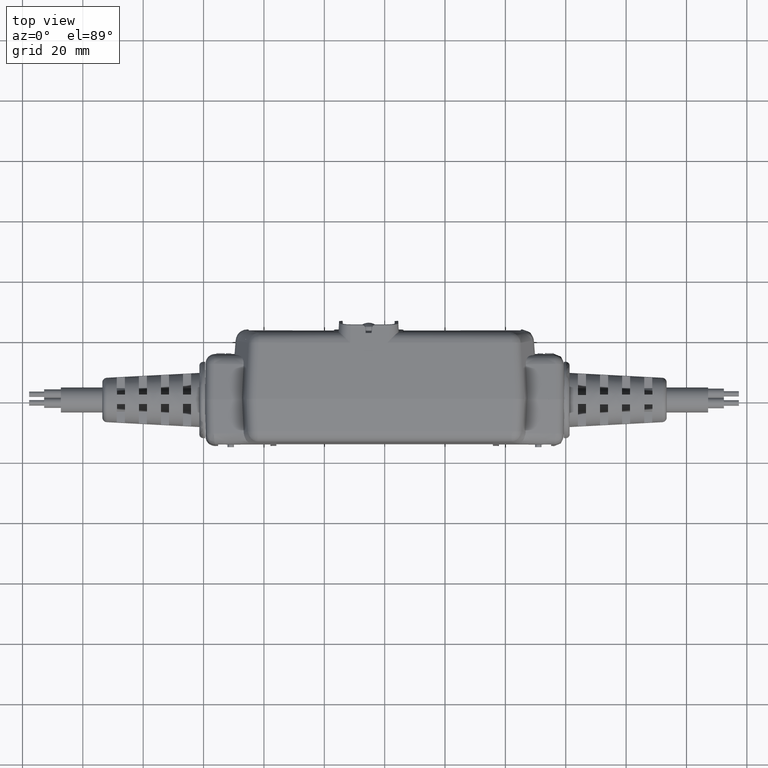
[diagram: clean part render]
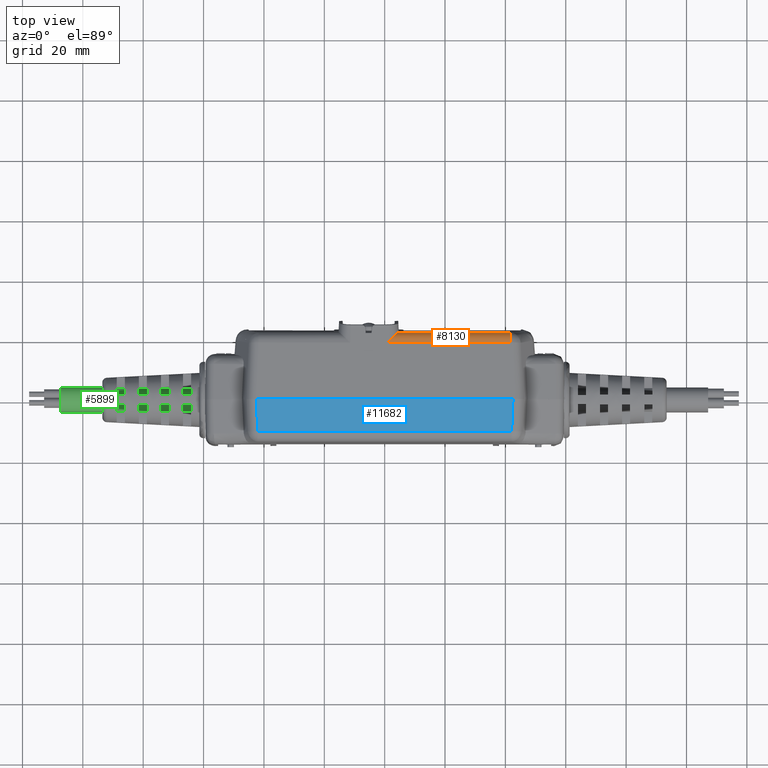
[diagram: same view with three faces highlighted in distinct colors, each labeled with its STEP entity id]
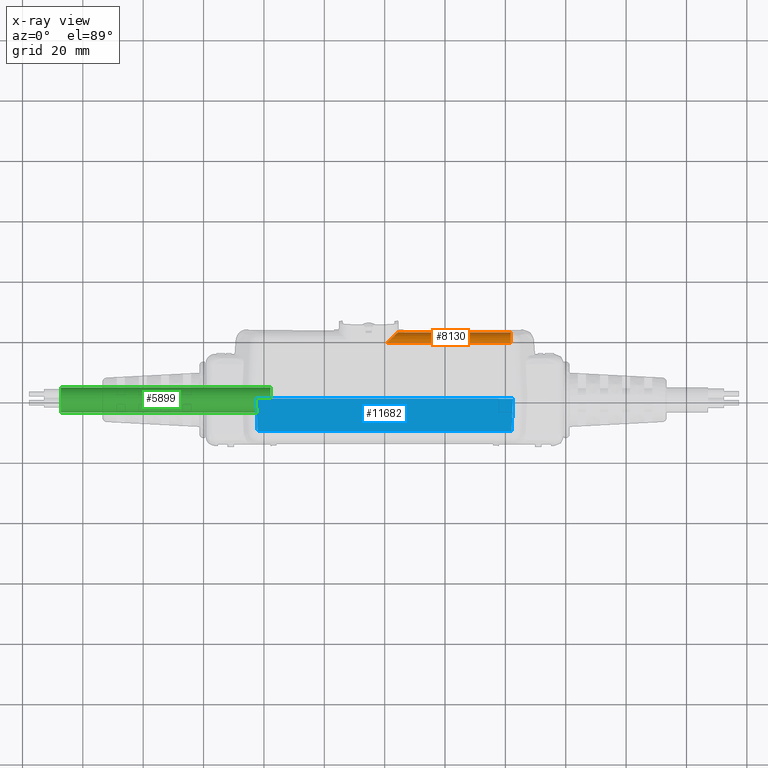
[diagram: x-ray of the same camera — body ghosted, the three highlighted faces saturated]
A machine part, top view with three faces highlighted in distinct colors.
The next image is the same camera in x-ray (body ghosted, the three faces saturated) — at least one of them is partly hidden behind the body in this view.
Their STEP definitions:

[orange] entity #8130 — the highlighted cylindrical surface (edge-blend (fillet) strip) has radius 3.81 mm, axis along (1, 0, 0).
#439 = CARTESIAN_POINT ( 'NONE',  ( 0.1042708627586230868, 0.8286257809580163114, 0.7224158907405245911 ) ) ;
#710 = AXIS2_PLACEMENT_3D ( 'NONE', #10617, #24370, #17590 ) ;
#1281 = B_SPLINE_CURVE_WITH_KNOTS ( 'NONE', 3,
 ( #23418, #11916, #26007, #7511, #439, #16747, #18916, #28160, #5231, #23860, #15208, #14630, #26598, #12355 ),
 .UNSPECIFIED., .F., .F.,
 ( 4, 2, 2, 2, 2, 2, 4 ),
 ( -1.275887912553321181E-05, 0.001580478218926012479, 0.003173715316977558480, 0.003970333866003336251, 0.004766952415029114890, 0.005563570964054893528, 0.006360189513080672166 ),
 .UNSPECIFIED. ) ;
#1588 = VECTOR ( 'NONE', #28380, 39.37007874015748143 ) ;
#2575 = VERTEX_POINT ( 'NONE', #17530 ) ;
#2770 = VERTEX_POINT ( 'NONE', #28425 ) ;
#3194 = CARTESIAN_POINT ( 'NONE',  ( -1.981726499999998836, 0.8936348838865693089, 0.6197880616661830544 ) ) ;
#3705 = VECTOR ( 'NONE', #20857, 39.37007874015748143 ) ;
#5231 = CARTESIAN_POINT ( 'NONE',  ( 0.1482905301575566659, 0.8696113914009017121, 0.6811854644754483656 ) ) ;
#5455 = LINE ( 'NONE', #3194, #1588 ) ;
#7511 = CARTESIAN_POINT ( 'NONE',  ( 0.09047097208138285551, 0.8152086390500354884, 0.7302099932646179958 ) ) ;
#7986 = CARTESIAN_POINT ( 'NONE',  ( 0.1785971017309260223, 0.8936348838865693089, 0.6197880616661830544 ) ) ;
#8130 = ADVANCED_FACE ( 'NONE', ( #11768 ), #27841, .T. ) ;
#8856 = EDGE_CURVE ( 'NONE', #2770, #2575, #26824, .T. ) ;
#10013 = EDGE_CURVE ( 'NONE', #2575, #26926, #5455, .T. ) ;
#10617 = CARTESIAN_POINT ( 'NONE',  ( 1.644712927986472284, 0.7454467714511952003, 0.5965440660363268144 ) ) ;
#10956 = ORIENTED_EDGE ( 'NONE', *, *, #8856, .T. ) ;
#11472 = ORIENTED_EDGE ( 'NONE', *, *, #29567, .F. ) ;
#11768 = FACE_OUTER_BOUND ( 'NONE', #13668, .T. ) ;
#11916 = CARTESIAN_POINT ( 'NONE',  ( 0.04705989030231578357, 0.7720882495256207179, 0.7449111660119640543 ) ) ;
#12355 = CARTESIAN_POINT ( 'NONE',  ( 0.1785971017309260223, 0.8936348838865693089, 0.6197880616661830544 ) ) ;
#13181 = CARTESIAN_POINT ( 'NONE',  ( 0.03241044873535821325, 0.7572156358103705465, 0.7460816660962973357 ) ) ;
#13668 = EDGE_LOOP ( 'NONE', ( #10956, #17082, #11472, #15875 ) ) ;
#14630 = CARTESIAN_POINT ( 'NONE',  ( 0.1722560965431709779, 0.8895250606235423074, 0.6393485352821147716 ) ) ;
#15208 = CARTESIAN_POINT ( 'NONE',  ( 0.1638382360091075740, 0.8829513411937932599, 0.6572340099986261341 ) ) ;
#15875 = ORIENTED_EDGE ( 'NONE', *, *, #22465, .F. ) ;
#16298 = CARTESIAN_POINT ( 'NONE',  ( -1.981726499999999058, 0.7572156358103705465, 0.7460816660962973357 ) ) ;
#16747 = CARTESIAN_POINT ( 'NONE',  ( 0.1240098932836128653, 0.8473441607407642406, 0.7069186012570699562 ) ) ;
#17082 = ORIENTED_EDGE ( 'NONE', *, *, #10013, .T. ) ;
#17530 = CARTESIAN_POINT ( 'NONE',  ( 1.644712927986472506, 0.8936348838865693089, 0.6197880616661811670 ) ) ;
#17590 = DIRECTION ( 'NONE',  ( 0.000000000000000000, -1.821231995776174690E-15, -1.000000000000000000 ) ) ;
#17920 = VERTEX_POINT ( 'NONE', #13181 ) ;
#18916 = CARTESIAN_POINT ( 'NONE',  ( 0.1304586559708509619, 0.8533729828034370968, 0.7010625070254670188 ) ) ;
#20857 = DIRECTION ( 'NONE',  ( -1.000000000000000000, -6.668185433380451414E-18, -1.387778780781445367E-17 ) ) ;
#22465 = EDGE_CURVE ( 'NONE', #2770, #17920, #25861, .T. ) ;
#23418 = CARTESIAN_POINT ( 'NONE',  ( 0.03241044873535821325, 0.7572156358103705465, 0.7460816660962973357 ) ) ;
#23860 = CARTESIAN_POINT ( 'NONE',  ( 0.1589151419206596694, 0.8788421260587876427, 0.6657300367681154851 ) ) ;
#24370 = DIRECTION ( 'NONE',  ( -1.000000000000000000, -6.668185433380451414E-18, -1.387778780781445367E-17 ) ) ;
#25861 = LINE ( 'NONE', #16298, #3705 ) ;
#26007 = CARTESIAN_POINT ( 'NONE',  ( 0.06175556509219703311, 0.7868344521357512056, 0.7415280588087362901 ) ) ;
#26306 = DIRECTION ( 'NONE',  ( 0.000000000000000000, 0.000000000000000000, -1.000000000000000000 ) ) ;
#26588 = DIRECTION ( 'NONE',  ( 1.000000000000000000, 6.668185433380451414E-18, 1.387778780781445367E-17 ) ) ;
#26598 = CARTESIAN_POINT ( 'NONE',  ( 0.1758172556853387636, 0.8920510079663050984, 0.6298857912774514789 ) ) ;
#26824 = CIRCLE ( 'NONE', #710, 0.1500000000000000500 ) ;
#26926 = VERTEX_POINT ( 'NONE', #7986 ) ;
#27841 = CYLINDRICAL_SURFACE ( 'NONE', #28544, 0.1500000000000000500 ) ;
#28160 = CARTESIAN_POINT ( 'NONE',  ( 0.1425759208614394979, 0.8644839639077726012, 0.6882082270574427785 ) ) ;
#28299 = CARTESIAN_POINT ( 'NONE',  ( -1.981726499999999058, 0.7454467714511952003, 0.5965440660363268144 ) ) ;
#28380 = DIRECTION ( 'NONE',  ( -1.000000000000000000, -6.668185433380451414E-18, -1.387778780781445367E-17 ) ) ;
#28425 = CARTESIAN_POINT ( 'NONE',  ( 1.644712927986472284, 0.7572156358103705465, 0.7460816660962973357 ) ) ;
#28544 = AXIS2_PLACEMENT_3D ( 'NONE', #28299, #26588, #26306 ) ;
#29567 = EDGE_CURVE ( 'NONE', #17920, #26926, #1281, .T. ) ;

[blue] entity #11682 — the highlighted planar face has unit normal (0, -0.0785, 0.9969).
#305 = ORIENTED_EDGE ( 'NONE', *, *, #17615, .T. ) ;
#311 = CARTESIAN_POINT ( 'NONE',  ( 1.655444038188068401, -0.3982320587348064378, 0.7710687768508429629 ) ) ;
#1227 = DIRECTION ( 'NONE',  ( 1.000000000000000000, -4.163215699622375742E-50, -3.081487911019578049E-33 ) ) ;
#1271 = LINE ( 'NONE', #22433, #25671 ) ;
#1913 = DIRECTION ( 'NONE',  ( 1.000000000000000000, -4.163215699622375742E-50, -3.081487911019578049E-33 ) ) ;
#2400 = PLANE ( 'NONE',  #19348 ) ;
#3006 = ORIENTED_EDGE ( 'NONE', *, *, #5616, .T. ) ;
#3414 = VECTOR ( 'NONE', #29439, 39.37007874015748143 ) ;
#4059 = EDGE_CURVE ( 'NONE', #6901, #26855, #13204, .T. ) ;
#5616 = EDGE_CURVE ( 'NONE', #18110, #6901, #15251, .T. ) ;
#6901 = VERTEX_POINT ( 'NONE', #311 ) ;
#8292 = CARTESIAN_POINT ( 'NONE',  ( -1.674536546015044536, 0.02195188560991318677, 0.8041379704510728255 ) ) ;
#8994 = VECTOR ( 'NONE', #1913, 39.37007874015748143 ) ;
#10093 = DIRECTION ( 'NONE',  ( 7.087656368213385646E-35, 0.9969173337331279638, 0.07845909572784491581 ) ) ;
#10487 = DIRECTION ( 'NONE',  ( 0.04525197658736428846, -0.9958960962167422437, -0.07837872259223202520 ) ) ;
#11682 = ADVANCED_FACE ( 'NONE', ( #16427 ), #2400, .T. ) ;
#12265 = CARTESIAN_POINT ( 'NONE',  ( 1.736470330147981800, -0.3982320587348064378, 0.7710687768508429629 ) ) ;
#13204 = LINE ( 'NONE', #17921, #3414 ) ;
#15251 = LINE ( 'NONE', #12265, #19344 ) ;
#15685 = ORIENTED_EDGE ( 'NONE', *, *, #21706, .F. ) ;
#15786 = LINE ( 'NONE', #20500, #8994 ) ;
#16427 = FACE_OUTER_BOUND ( 'NONE', #26704, .T. ) ;
#17188 = CARTESIAN_POINT ( 'NONE',  ( -2.331500000000000128, 0.02195188560991318677, 0.8041379704510728255 ) ) ;
#17615 = EDGE_CURVE ( 'NONE', #22300, #18110, #1271, .T. ) ;
#17921 = CARTESIAN_POINT ( 'NONE',  ( 1.666333219189693571, -0.1585852263013189378, 0.7899293915984716419 ) ) ;
#18110 = VERTEX_POINT ( 'NONE', #18867 ) ;
#18867 = CARTESIAN_POINT ( 'NONE',  ( -1.655444038188067735, -0.3982320587348064378, 0.7710687768508429629 ) ) ;
#19344 = VECTOR ( 'NONE', #1227, 39.37007874015748143 ) ;
#19348 = AXIS2_PLACEMENT_3D ( 'NONE', #17188, #26438, #10093 ) ;
#20500 = CARTESIAN_POINT ( 'NONE',  ( -2.331500000000000128, 0.02195188560991318677, 0.8041379704510728255 ) ) ;
#21706 = EDGE_CURVE ( 'NONE', #22300, #26855, #15786, .T. ) ;
#22300 = VERTEX_POINT ( 'NONE', #8292 ) ;
#22433 = CARTESIAN_POINT ( 'NONE',  ( -1.675881837268243801, 0.05155877592439465917, 0.8064680832525916720 ) ) ;
#25253 = ORIENTED_EDGE ( 'NONE', *, *, #4059, .T. ) ;
#25671 = VECTOR ( 'NONE', #10487, 39.37007874015748143 ) ;
#26438 = DIRECTION ( 'NONE',  ( 3.085438376727228693E-33, -0.07845909572784491581, 0.9969173337331279638 ) ) ;
#26704 = EDGE_LOOP ( 'NONE', ( #3006, #25253, #15685, #305 ) ) ;
#26791 = CARTESIAN_POINT ( 'NONE',  ( 1.674536546015044980, 0.02195188560991318677, 0.8041379704510728255 ) ) ;
#26855 = VERTEX_POINT ( 'NONE', #26791 ) ;
#29439 = DIRECTION ( 'NONE',  ( 0.04525197658736424683, 0.9958960962167422437, 0.07837872259223202520 ) ) ;

[green] entity #5899 — the highlighted cylindrical surface (edge-blend (fillet) strip) has radius 4.1275 mm, axis along (1, -0, -0).
#510 = DIRECTION ( 'NONE',  ( -1.000000000000000000, 3.979738198320037513E-17, 3.153553635574504987E-16 ) ) ;
#898 = VECTOR ( 'NONE', #10950, 39.37007874015748143 ) ;
#2034 = CARTESIAN_POINT ( 'NONE',  ( -1.488487881683636216, 0.02199228388355313479, 8.975243095199420061E-05 ) ) ;
#3735 = AXIS2_PLACEMENT_3D ( 'NONE', #2034, #6218, #6069 ) ;
#3957 = DIRECTION ( 'NONE',  ( 0.000000000000000000, -0.9999619230641714207, 0.008726535498373759470 ) ) ;
#5899 = ADVANCED_FACE ( 'NONE', ( #23940 ), #10036, .T. ) ;
#6069 = DIRECTION ( 'NONE',  ( 0.000000000000000000, -0.9999619230641714207, 0.008726535498373759470 ) ) ;
#6123 = CIRCLE ( 'NONE', #22581, 0.1625000000000000056 ) ;
#6218 = DIRECTION ( 'NONE',  ( 1.000000000000000000, -3.979738198320037513E-17, -3.153553635574504987E-16 ) ) ;
#6881 = VERTEX_POINT ( 'NONE', #23578 ) ;
#7107 = CARTESIAN_POINT ( 'NONE',  ( -4.223133550974974781, -0.1405015286143746212, 0.001507814449438160632 ) ) ;
#7488 = EDGE_CURVE ( 'NONE', #6881, #24057, #28476, .T. ) ;
#7524 = EDGE_CURVE ( 'NONE', #20283, #6881, #29301, .T. ) ;
#10036 = CYLINDRICAL_SURFACE ( 'NONE', #10673, 0.1625000000000000056 ) ;
#10673 = AXIS2_PLACEMENT_3D ( 'NONE', #17607, #15450, #3957 ) ;
#10950 = DIRECTION ( 'NONE',  ( 1.000000000000000000, -3.979738198320037513E-17, -3.153553635574504987E-16 ) ) ;
#11977 = CARTESIAN_POINT ( 'NONE',  ( -4.223133550974974781, 0.02199228388355324582, 8.975243095285658857E-05 ) ) ;
#12321 = EDGE_CURVE ( 'NONE', #15605, #20283, #6123, .T. ) ;
#12731 = EDGE_CURVE ( 'NONE', #15605, #24057, #20136, .T. ) ;
#12954 = EDGE_LOOP ( 'NONE', ( #14851, #29380, #21323, #17420 ) ) ;
#13015 = CARTESIAN_POINT ( 'NONE',  ( -3.829432763573399789, -0.1405015286143746212, 0.001507814449438468112 ) ) ;
#14851 = ORIENTED_EDGE ( 'NONE', *, *, #7524, .F. ) ;
#15450 = DIRECTION ( 'NONE',  ( 1.000000000000000000, -3.979738198320037513E-17, -3.153553635574504987E-16 ) ) ;
#15605 = VERTEX_POINT ( 'NONE', #7107 ) ;
#16821 = VECTOR ( 'NONE', #22247, 39.37007874015748143 ) ;
#17420 = ORIENTED_EDGE ( 'NONE', *, *, #7488, .F. ) ;
#17607 = CARTESIAN_POINT ( 'NONE',  ( -3.829432763573399789, 0.02199228388355323194, 8.975243095273243387E-05 ) ) ;
#20031 = CARTESIAN_POINT ( 'NONE',  ( -3.829432763573399789, 0.1844860963814810850, -0.001328309587533023492 ) ) ;
#20136 = LINE ( 'NONE', #13015, #16821 ) ;
#20283 = VERTEX_POINT ( 'NONE', #21785 ) ;
#21323 = ORIENTED_EDGE ( 'NONE', *, *, #12731, .T. ) ;
#21785 = CARTESIAN_POINT ( 'NONE',  ( -4.223133550974974781, 0.1844860963814810850, -0.001328309587533330321 ) ) ;
#21927 = CARTESIAN_POINT ( 'NONE',  ( -1.488487881683636216, -0.1405015286143747322, 0.001507814449437729987 ) ) ;
#22247 = DIRECTION ( 'NONE',  ( 1.000000000000000000, -3.979738198320037513E-17, -3.153553635574504987E-16 ) ) ;
#22581 = AXIS2_PLACEMENT_3D ( 'NONE', #11977, #510, #26078 ) ;
#23578 = CARTESIAN_POINT ( 'NONE',  ( -1.488487881683636216, 0.1844860963814810018, -0.001328309587533329670 ) ) ;
#23940 = FACE_OUTER_BOUND ( 'NONE', #12954, .T. ) ;
#24057 = VERTEX_POINT ( 'NONE', #21927 ) ;
#26078 = DIRECTION ( 'NONE',  ( 0.000000000000000000, 0.9999619230641714207, -0.008726535498373759470 ) ) ;
#28476 = CIRCLE ( 'NONE', #3735, 0.1625000000000000056 ) ;
#29301 = LINE ( 'NONE', #20031, #898 ) ;
#29380 = ORIENTED_EDGE ( 'NONE', *, *, #12321, .F. ) ;